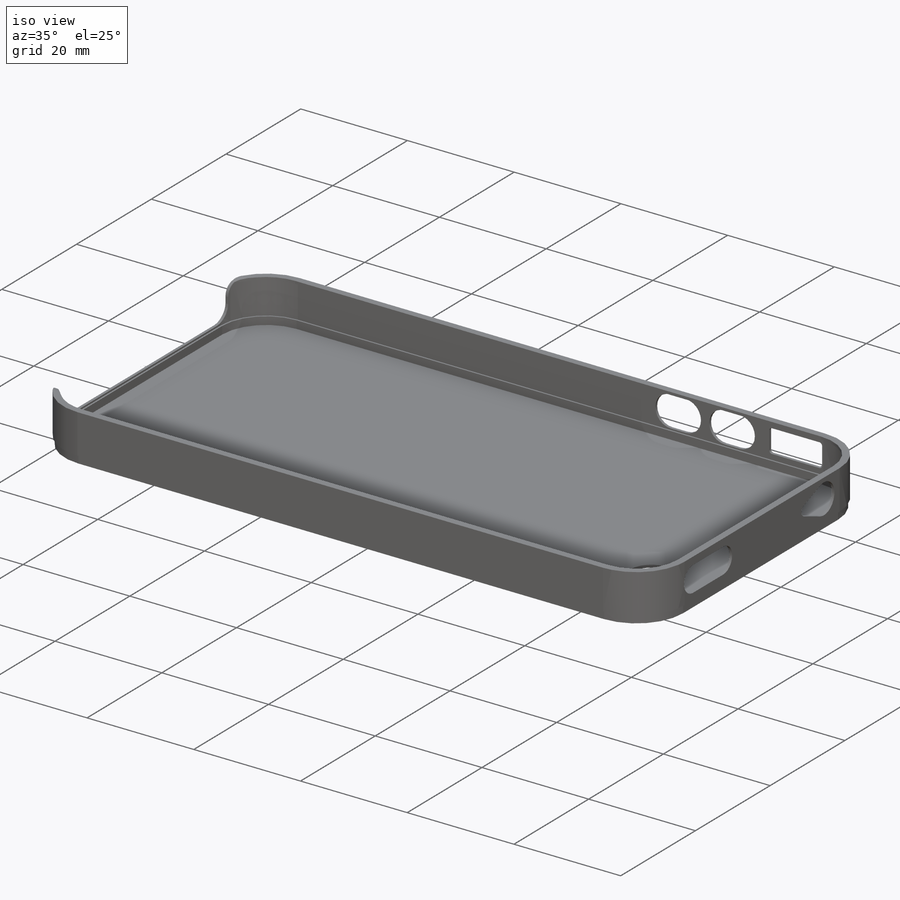
[diagram: iso view]
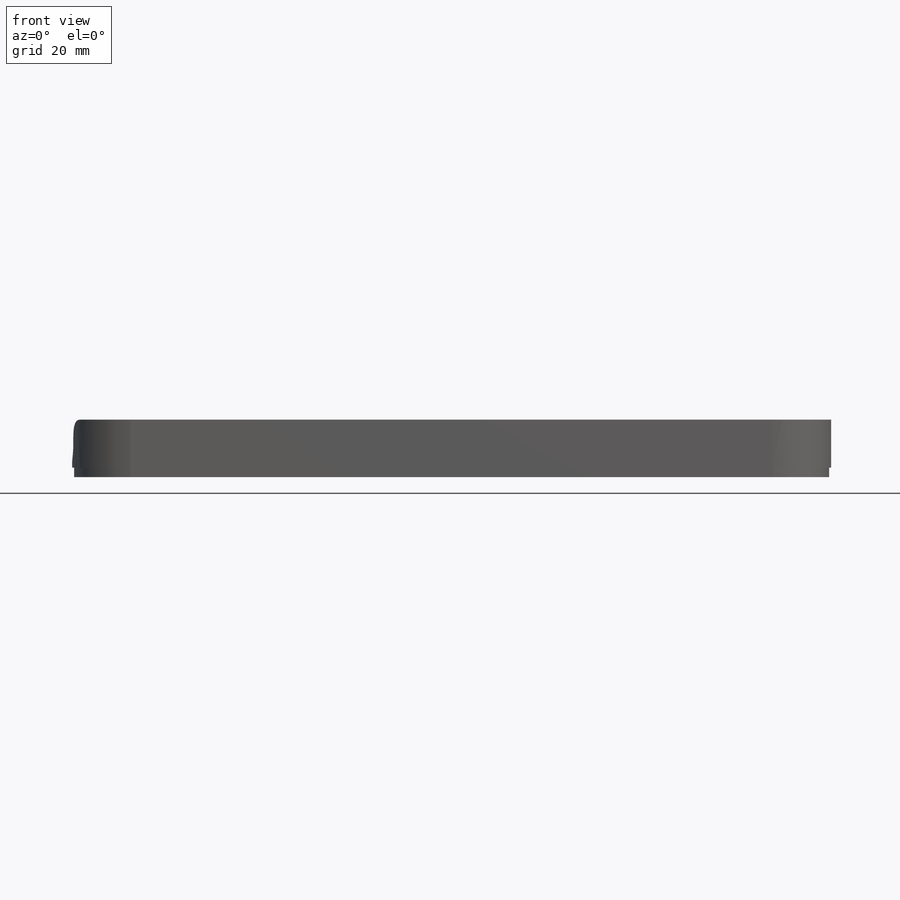
[diagram: front view]
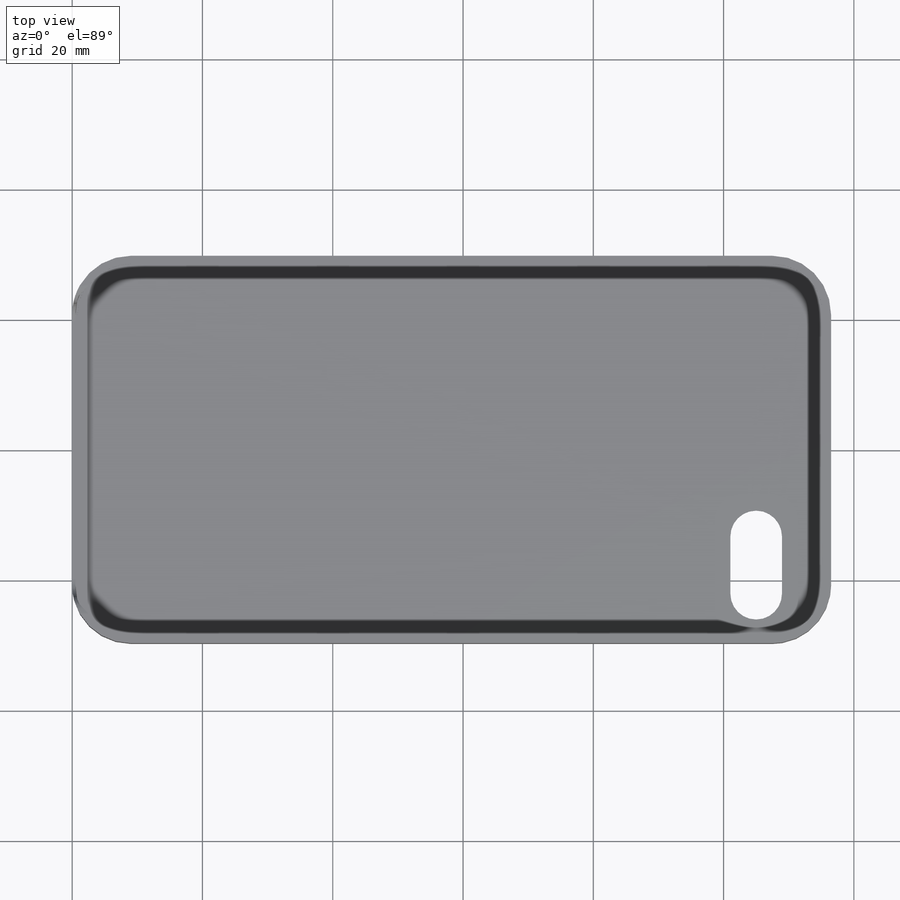
[diagram: top view]
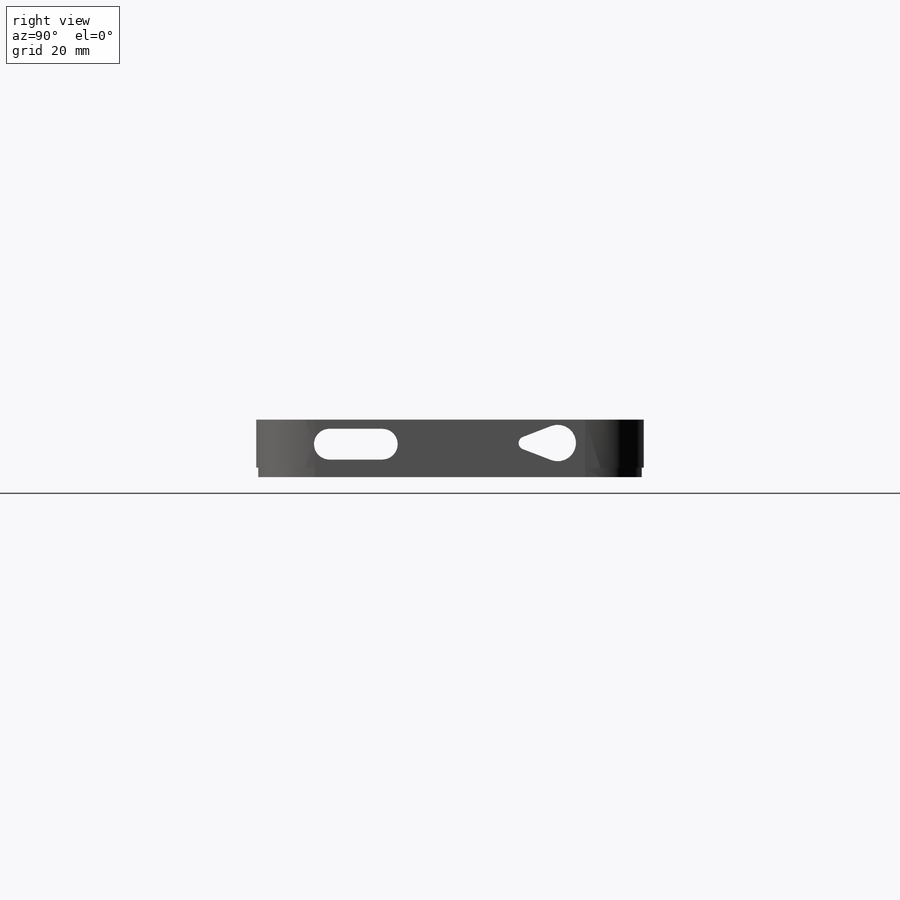
[diagram: right view]
SOLIDWORKS PART (.sldprt)
format: sldprt  version: not decoded by parser v0  size: 464,896 bytes
history: native  units: mm
features: sketch x10, cut_extrude x8, fillet x3, extrude x2, material x1, shell x1, pattern_linear x1, mirror x1 (+11 scaffold rows collapsed)
feature tree (38):
  scaffold x11  (default folders/planes/origin — collapsed)
  material  "ABS"
  sketch  "Sketch1"  dims[D1=59.48mm D2=116.5mm]
  extrude  "Boss-Extrude1"  Depth=8.82mm
  fillet  "Fillet1"  Radius=9mm
  sketch  "Sketch2"  dims[c1.D1=0.0mm c1.D2=0.3mm c2.D1=0.0mm c2.D2=0.3mm]
  cut_extrude  "Cut-Extrude1"  Depth=1.46mm
  shell  "Shell1"  Thickness=0.5mm
  sketch  "Sketch3"  dims[D1=0.0mm D2=0.0mm D3=0.74mm]
  extrude  "Boss-Extrude2"  Depth=0.5mm
  sketch  "Sketch4"  dims[D1=0.8mm]
  cut_extrude  "Cut-Extrude2"  Depth=10.5mm
  fillet  "Fillet2"  Radius=1mm
  fillet  "Fillet3"  Radius=2.7mm
  sketch  "Sketch5"  dims[D1=8.8mm D2=7.92mm D3=6.5mm D4=6.3mm]
  cut_extrude  "Cut-Extrude3"  [1 undecoded]
  sketch  "Sketch6"  dims[D1=8.13mm D2=4.73mm D3=1.4mm D4=11.22mm]
  cut_extrude  "Cut-Extrude4"  Depth=10.5mm
  sketch  "Sketch7"  dims[D1=2.8mm D2=1.0mm D3=4.67mm D4=10.4mm D5=0.79mm]
  cut_extrude  "Cut-Extrude5"  Depth=10.5mm
  sketch  "Sketch8"  dims[D5=0.5mm D1=9.9mm D2=4.36mm D3=1.48mm D4=9.24mm]
  cut_extrude  "Cut-Extrude6"  Depth=10.5mm
  sketch  "Sketch9"  dims[D1=2.83mm D2=5.73mm D3=2.7mm D4=0.85mm]
  cut_extrude  "Cut-Extrude7"  Depth=10.5mm
  pattern_linear  "LPattern1"  Count1=2 Count2=1 Spacing1=10.1mm Spacing2=10mm
  sketch  "Sketch10"
  cut_extrude  "Cut-Extrude8"  Depth=1mm
  mirror  "Mirror1"
decode coverage: 23 of 26 modeling features carry decoded parameters
note: 1 parameter value undecoded
note: suppression state not decoded; provenance and decode notes live in map.json
